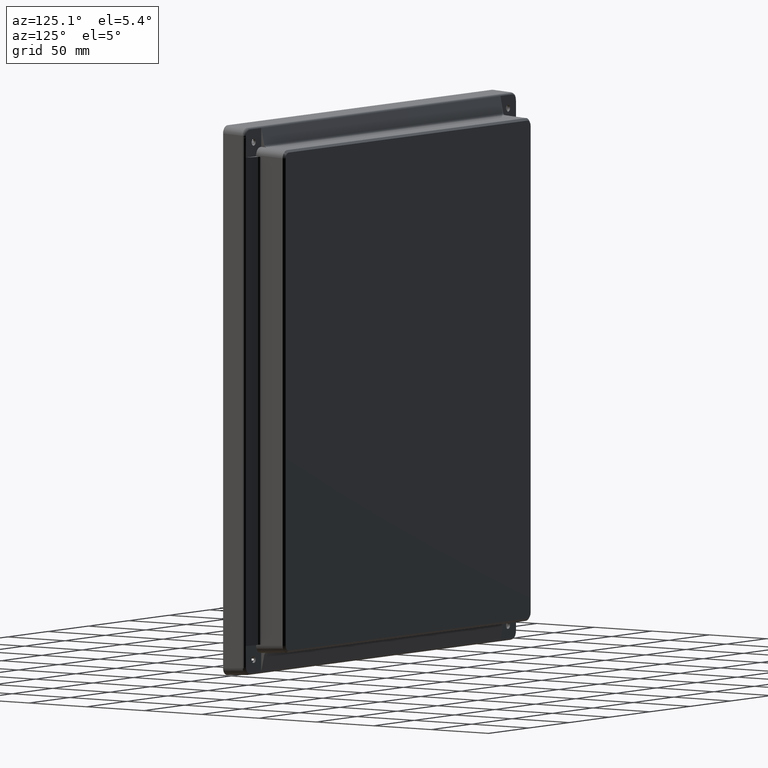
[diagram: clean part render]
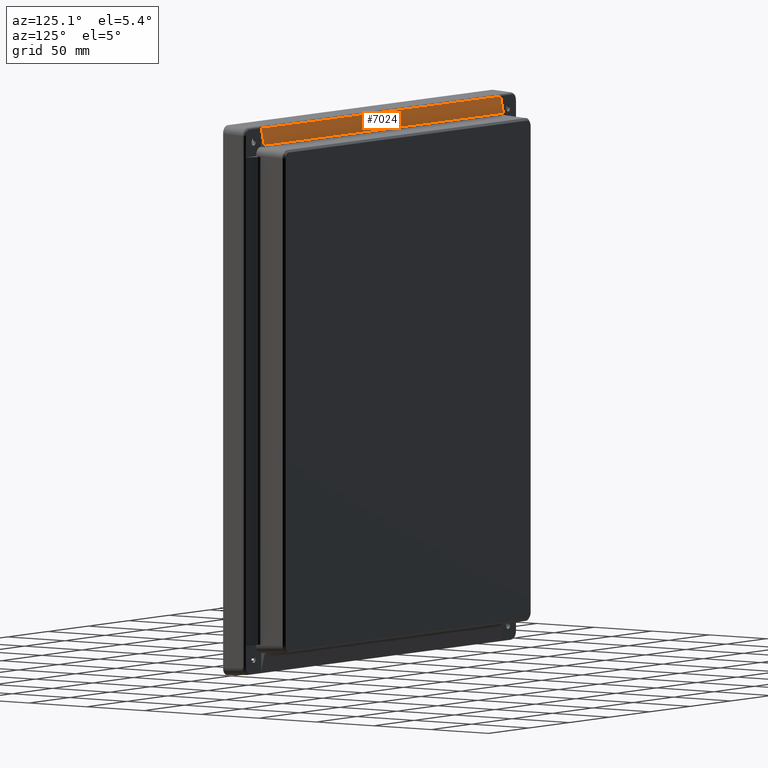
[diagram: same view with one face highlighted and labeled with its STEP entity id]
A machine part, auxiliary view. The second image highlights one B-rep face of the part: STEP entity #7024.
In plain terms, the highlighted planar face has unit normal (0, 0.9781, 0.2079).
Its self-contained STEP definition (entity closure, byte-faithful):
#7002 = ORIENTED_EDGE ( 'NONE', *, *, #7003, .T. ) ;
#7003 = EDGE_CURVE ( 'NONE', #7032, #7004, #9934, .T. ) ;
#7004 = VERTEX_POINT ( 'NONE', #9930 ) ;
#7005 = ORIENTED_EDGE ( 'NONE', *, *, #7006, .T. ) ;
#7006 = EDGE_CURVE ( 'NONE', #7004, #7028, #9929, .T. ) ;
#7024 = ADVANCED_FACE ( 'NONE', ( #9960 ), #9962, .T. ) ;
#7025 = EDGE_LOOP ( 'NONE', ( #7026, #7030, #7002, #7005 ) ) ;
#7026 = ORIENTED_EDGE ( 'NONE', *, *, #7027, .T. ) ;
#7027 = EDGE_CURVE ( 'NONE', #7028, #7029, #10006, .T. ) ;
#7028 = VERTEX_POINT ( 'NONE', #10002 ) ;
#7029 = VERTEX_POINT ( 'NONE', #10001 ) ;
#7030 = ORIENTED_EDGE ( 'NONE', *, *, #7031, .T. ) ;
#7031 = EDGE_CURVE ( 'NONE', #7029, #7032, #10000, .T. ) ;
#7032 = VERTEX_POINT ( 'NONE', #9996 ) ;
#9926 = DIRECTION ( 'NONE',  ( 1.000000000000000000, -0.0000000000000000000, -0.0000000000000000000 ) ) ;
#9927 = VECTOR ( 'NONE', #9926, 1000.000000000000000 ) ;
#9928 = CARTESIAN_POINT ( 'NONE',  ( 162.9662624004990600, 10.31907250296160500, 194.2248041026297800 ) ) ;
#9929 = LINE ( 'NONE', #9928, #9927 ) ;
#9930 = CARTESIAN_POINT ( 'NONE',  ( -148.1818231213823900, 10.31907250296160500, 194.2248041026297800 ) ) ;
#9931 = DIRECTION ( 'NONE',  ( -0.01089554322459432600, -0.2078993495555324100, 0.9780895396599574900 ) ) ;
#9932 = VECTOR ( 'NONE', #9931, 1000.000000000000100 ) ;
#9933 = CARTESIAN_POINT ( 'NONE',  ( -148.2009521881779200, 9.954068164727596400, 195.9420145023757700 ) ) ;
#9934 = LINE ( 'NONE', #9933, #9932 ) ;
#9956 = DIRECTION ( 'NONE',  ( 0.0000000000000000000, -0.2079116908177565700, 0.9781476007338061300 ) ) ;
#9957 = DIRECTION ( 'NONE',  ( 0.0000000000000000000, 0.9781476007338062400, 0.2079116908177565900 ) ) ;
#9958 = CARTESIAN_POINT ( 'NONE',  ( -168.4759222071695000, 9.999999999999998200, 195.7259222071696200 ) ) ;
#9959 = AXIS2_PLACEMENT_3D ( 'NONE', #9958, #9957, #9956 ) ;
#9960 = FACE_OUTER_BOUND ( 'NONE', #7025, .T. ) ;
#9962 = PLANE ( 'NONE',  #9959 ) ;
#9996 = CARTESIAN_POINT ( 'NONE',  ( -148.0491065654374600, 12.85145524767155400, 182.3108799931434900 ) ) ;
#9997 = DIRECTION ( 'NONE',  ( -1.000000000000000000, 0.0000000000000000000, -0.0000000000000000000 ) ) ;
#9998 = VECTOR ( 'NONE', #9997, 1000.000000000000000 ) ;
#9999 = CARTESIAN_POINT ( 'NONE',  ( -148.0323846841269500, 12.85145524767155000, 182.3108799931434900 ) ) ;
#10000 = LINE ( 'NONE', #9999, #9998 ) ;
#10001 = CARTESIAN_POINT ( 'NONE',  ( 148.0491065654375700, 12.85145524767155200, 182.3108799931434900 ) ) ;
#10002 = CARTESIAN_POINT ( 'NONE',  ( 148.1818231213824800, 10.31907250296160500, 194.2248041026297800 ) ) ;
#10003 = DIRECTION ( 'NONE',  ( -0.01089554322459431900, 0.2078993495555324100, -0.9780895396599574900 ) ) ;
#10004 = VECTOR ( 'NONE', #10003, 1000.000000000000100 ) ;
#10005 = CARTESIAN_POINT ( 'NONE',  ( 148.1609516703178400, 10.71732351359761800, 192.3511804068613500 ) ) ;
#10006 = LINE ( 'NONE', #10005, #10004 ) ;